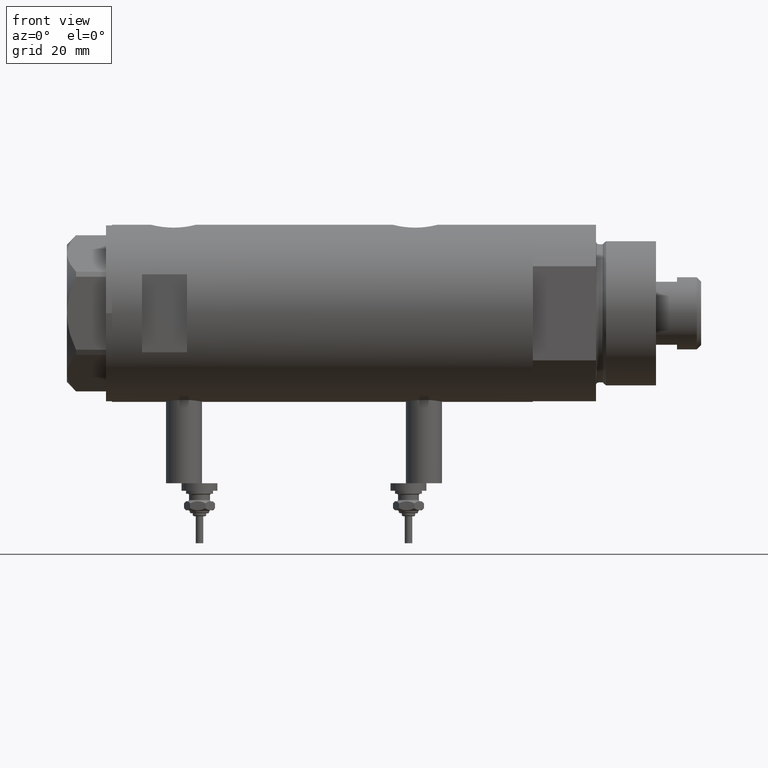
[diagram: clean part render]
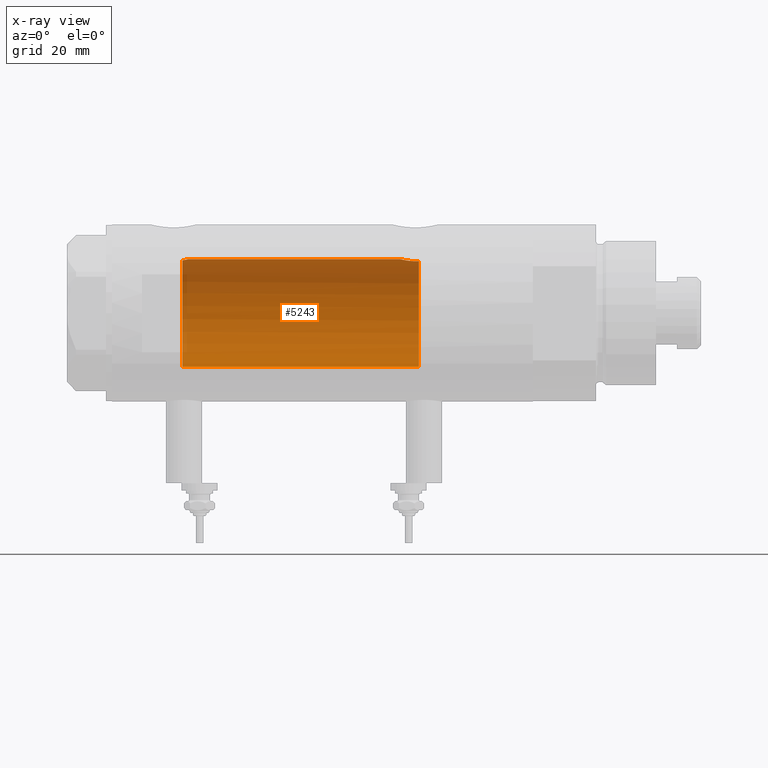
[diagram: x-ray — body ghosted, one internal face saturated and labeled with its STEP entity id]
A machine part, front view, then the same camera in x-ray: the body is ghosted and one INTERNAL B-rep face — a face not visible from any outside direction — is saturated and labeled: STEP entity #5243.
In plain terms, the highlighted cylindrical surface (partial cylindrical patch) has radius 18 mm, axis along (1, 0, -0).
Its self-contained STEP definition (entity closure, byte-faithful):
#23 = CARTESIAN_POINT ( 'NONE',  ( 0.000000000000000000, 0.000000000000000000, 46.59999999999999432 ) ) ;
#143 = VERTEX_POINT ( 'NONE', #2026 ) ;
#261 = CARTESIAN_POINT ( 'NONE',  ( 17.58783030962034388, 3.829911878881825160, 46.59999999999998721 ) ) ;
#329 = CARTESIAN_POINT ( 'NONE',  ( 17.83158514913445103, 2.461498934476296085, 45.39965995681277633 ) ) ;
#420 = CARTESIAN_POINT ( 'NONE',  ( 17.49030773641652914, 4.256160900234553957, -28.51469509681785652 ) ) ;
#527 = CARTESIAN_POINT ( 'NONE',  ( 17.37157951943346745, 4.714681855650494136, -32.09999999999999432 ) ) ;
#595 = AXIS2_PLACEMENT_3D ( 'NONE', #2265, #3985, #3167 ) ;
#606 = VERTEX_POINT ( 'NONE', #5298 ) ;
#624 = EDGE_CURVE ( 'NONE', #606, #143, #5754, .T. ) ;
#669 = AXIS2_PLACEMENT_3D ( 'NONE', #810, #4337, #2526 ) ;
#704 = CARTESIAN_POINT ( 'NONE',  ( 17.95540531162507136, 1.279032093992328756, 44.90250861430337892 ) ) ;
#792 = CARTESIAN_POINT ( 'NONE',  ( 17.43128843254318028, 4.489613141718952427, -29.01700003713170162 ) ) ;
#810 = CARTESIAN_POINT ( 'NONE',  ( 0.000000000000000000, 0.000000000000000000, -32.09999999999998721 ) ) ;
#887 = EDGE_LOOP ( 'NONE', ( #3698, #1569, #5894, #1204, #1902, #2461 ) ) ;
#959 = CARTESIAN_POINT ( 'NONE',  ( 17.35631194664785681, 4.771042759406570077, -29.89667763205954287 ) ) ;
#1070 = CARTESIAN_POINT ( 'NONE',  ( -18.00000000000000000, 0.000000000000000000, 46.59999999999999432 ) ) ;
#1136 = CARTESIAN_POINT ( 'NONE',  ( 17.68814035493779357, 3.348626323852638365, 46.05183600219630335 ) ) ;
#1155 = VERTEX_POINT ( 'NONE', #2778 ) ;
#1204 = ORIENTED_EDGE ( 'NONE', *, *, #5886, .T. ) ;
#1218 = CARTESIAN_POINT ( 'NONE',  ( 17.68656644271517209, 3.347025706529860312, -27.36453774950910045 ) ) ;
#1260 = CARTESIAN_POINT ( 'NONE',  ( 18.00000000000000000, 5.958021437579254357E-16, -26.03499999999998948 ) ) ;
#1284 = CARTESIAN_POINT ( 'NONE',  ( 17.41328271218089796, 4.558641711475907243, -29.19087254718660418 ) ) ;
#1404 = CARTESIAN_POINT ( 'NONE',  ( 17.58783030962034388, 3.829911878881825160, 46.59999999999998721 ) ) ;
#1569 = ORIENTED_EDGE ( 'NONE', *, *, #1582, .F. ) ;
#1580 = CARTESIAN_POINT ( 'NONE',  ( 17.63704841537101231, 3.603891093161669890, 46.31145343596539732 ) ) ;
#1582 = EDGE_CURVE ( 'NONE', #4367, #3429, #3288, .T. ) ;
#1650 = CARTESIAN_POINT ( 'NONE',  ( 17.99716691696285409, 0.3685254503903831469, -26.04545042928659981 ) ) ;
#1677 = CARTESIAN_POINT ( 'NONE',  ( 17.76085061188610581, 2.927954048074872251, -27.01043039029092441 ) ) ;
#1678 = CARTESIAN_POINT ( 'NONE',  ( 17.85293122918850273, 2.302201220737755794, 45.31031080804816469 ) ) ;
#1747 = CARTESIAN_POINT ( 'NONE',  ( 17.53642083926971651, 4.065376572064631766, -28.20260027543615777 ) ) ;
#1771 = CARTESIAN_POINT ( 'NONE',  ( 18.00000000000000000, 0.000000000000000000, 44.73499999999999233 ) ) ;
#1784 = LINE ( 'NONE', #4880, #3920 ) ;
#1902 = ORIENTED_EDGE ( 'NONE', *, *, #624, .T. ) ;
#1984 = B_SPLINE_CURVE_WITH_KNOTS ( 'NONE', 3,
 ( #1260, #4936, #1650, #2100, #3057, #2186, #5362, #3490, #4025, #5338, #1677, #3514, #1218, #4906, #5877, #1747, #420, #792, #1284, #2704, #959, #5482, #5903, #2789, #4555, #4620, #527 ),
 .UNSPECIFIED., .F., .F.,
 ( 4, 2, 2, 2, 2, 2, 2, 2, 2, 2, 1, 2, 2, 4 ),
 ( 0.01528157848519460724, 0.01583467956029641077, 0.01638778063539821778, 0.01749398278560182138, 0.01804708386070362491, 0.01860018493580542845, 0.01915328601090723198, 0.01970638708600903552, 0.02081258923621265300, 0.02136569031131445653, 0.02191879138641626354, 0.02247189246151807054, 0.02302499353661987755, 0.02413119568682350197 ),
 .UNSPECIFIED. ) ;
#2026 = CARTESIAN_POINT ( 'NONE',  ( 17.37157951943346745, 4.714681855650494136, -32.09999999999999432 ) ) ;
#2074 = CARTESIAN_POINT ( 'NONE',  ( 18.00000000000001066, 0.3728474842072352358, 44.73499999999999233 ) ) ;
#2100 = CARTESIAN_POINT ( 'NONE',  ( 17.98587882862718601, 0.7362002489460850452, -26.08746722239206406 ) ) ;
#2186 = CARTESIAN_POINT ( 'NONE',  ( 17.94405978035183935, 1.463580074031385569, -26.24553017623723861 ) ) ;
#2265 = CARTESIAN_POINT ( 'NONE',  ( 0.000000000000000000, 0.000000000000000000, 70.09999999999999432 ) ) ;
#2461 = ORIENTED_EDGE ( 'NONE', *, *, #3424, .F. ) ;
#2526 = DIRECTION ( 'NONE',  ( -1.000000000000000000, 0.000000000000000000, 0.000000000000000000 ) ) ;
#2687 = DIRECTION ( 'NONE',  ( -0.000000000000000000, -0.000000000000000000, -1.000000000000000000 ) ) ;
#2704 = CARTESIAN_POINT ( 'NONE',  ( 17.38237957915197285, 4.675094569549008483, -29.54138980228257338 ) ) ;
#2778 = CARTESIAN_POINT ( 'NONE',  ( 18.00000000000000000, 5.958021437579254357E-16, -26.03499999999998948 ) ) ;
#2789 = CARTESIAN_POINT ( 'NONE',  ( 17.32928165965088141, 4.867855194001449171, -30.81899018256649114 ) ) ;
#2972 = CARTESIAN_POINT ( 'NONE',  ( 17.89217382667230538, 1.974183297225218015, 45.14981302266163965 ) ) ;
#3057 = CARTESIAN_POINT ( 'NONE',  ( 17.97733715731490989, 0.9209699998971184742, -26.11935966604423243 ) ) ;
#3090 = DIRECTION ( 'NONE',  ( 0.000000000000000000, 0.000000000000000000, 1.000000000000000000 ) ) ;
#3167 = DIRECTION ( 'NONE',  ( -1.000000000000000000, 0.000000000000000000, 0.000000000000000000 ) ) ;
#3288 = B_SPLINE_CURVE_WITH_KNOTS ( 'NONE', 3,
 ( #261, #1580, #1136, #3903, #3491, #329, #1678, #2972, #3516, #4324, #704, #4816, #2074, #5738 ),
 .UNSPECIFIED., .F., .F.,
 ( 4, 2, 2, 2, 2, 2, 4 ),
 ( 0.02614985543880328500, 0.02725214354003946404, 0.02780328759065755356, 0.02835443164127564308, 0.02890557569189372913, 0.02945671974251181865, 0.03055900784374799770 ),
 .UNSPECIFIED. ) ;
#3332 = DIRECTION ( 'NONE',  ( -0.000000000000000000, -0.000000000000000000, -1.000000000000000000 ) ) ;
#3422 = CARTESIAN_POINT ( 'NONE',  ( -18.00000000000000000, 0.000000000000000000, 70.09999999999999432 ) ) ;
#3424 = EDGE_CURVE ( 'NONE', #1155, #143, #1984, .T. ) ;
#3429 = VERTEX_POINT ( 'NONE', #1771 ) ;
#3490 = CARTESIAN_POINT ( 'NONE',  ( 17.85236636886077832, 2.306694554785103435, -26.61264586133006560 ) ) ;
#3491 = CARTESIAN_POINT ( 'NONE',  ( 17.78617492856930227, 2.770629413254892537, 45.59682049650071178 ) ) ;
#3514 = CARTESIAN_POINT ( 'NONE',  ( 17.71174132276681590, 3.211689381115077513, -27.24121359250870000 ) ) ;
#3516 = CARTESIAN_POINT ( 'NONE',  ( 17.91007218376326193, 1.805463612197654166, 45.07866376881659676 ) ) ;
#3581 = DIRECTION ( 'NONE',  ( 1.000000000000000000, 0.000000000000000000, 0.000000000000000000 ) ) ;
#3698 = ORIENTED_EDGE ( 'NONE', *, *, #5541, .F. ) ;
#3795 = LINE ( 'NONE', #3422, #5387 ) ;
#3868 = VERTEX_POINT ( 'NONE', #1070 ) ;
#3903 = CARTESIAN_POINT ( 'NONE',  ( 17.76196254920472128, 2.921230608637938264, 45.70535341986154521 ) ) ;
#3920 = VECTOR ( 'NONE', #2687, 1000.000000000000000 ) ;
#3934 = CIRCLE ( 'NONE', #5481, 18.00000000000000000 ) ;
#3985 = DIRECTION ( 'NONE',  ( -0.000000000000000000, -0.000000000000000000, -1.000000000000000000 ) ) ;
#4025 = CARTESIAN_POINT ( 'NONE',  ( 17.83051055968251219, 2.469307448774137104, -26.70420614498791778 ) ) ;
#4047 = FACE_OUTER_BOUND ( 'NONE', #887, .T. ) ;
#4324 = CARTESIAN_POINT ( 'NONE',  ( 17.94167814235965608, 1.458276351914867375, 44.95504464479716233 ) ) ;
#4337 = DIRECTION ( 'NONE',  ( 0.000000000000000000, 0.000000000000000000, -1.000000000000000000 ) ) ;
#4367 = VERTEX_POINT ( 'NONE', #1404 ) ;
#4555 = CARTESIAN_POINT ( 'NONE',  ( 17.33262691996380767, 4.855935766715060886, -31.37488940890202116 ) ) ;
#4620 = CARTESIAN_POINT ( 'NONE',  ( 17.34671983132639284, 4.806279138776324622, -31.74012329268312271 ) ) ;
#4814 = EDGE_CURVE ( 'NONE', #4367, #3868, #3934, .T. ) ;
#4816 = CARTESIAN_POINT ( 'NONE',  ( 17.98843015915091570, 0.7391836159806497442, 44.77731130524778536 ) ) ;
#4880 = CARTESIAN_POINT ( 'NONE',  ( 18.00000000000000000, 2.204364238465235033E-15, 70.09999999999999432 ) ) ;
#4906 = CARTESIAN_POINT ( 'NONE',  ( 17.63589737371339083, 3.604488512479873119, -27.62742655266249514 ) ) ;
#4936 = CARTESIAN_POINT ( 'NONE',  ( 17.99999999999999645, 0.1844036484100888829, -26.03499999999998238 ) ) ;
#5243 = ADVANCED_FACE ( 'NONE', ( #4047 ), #5446, .F. ) ;
#5298 = CARTESIAN_POINT ( 'NONE',  ( -18.00000000000000000, 0.000000000000000000, -32.09999999999998721 ) ) ;
#5338 = CARTESIAN_POINT ( 'NONE',  ( 17.78478726694684298, 2.779555353823086161, -26.90297143050465323 ) ) ;
#5362 = CARTESIAN_POINT ( 'NONE',  ( 17.91189082287941403, 1.809824880389074186, -26.36912370284670004 ) ) ;
#5387 = VECTOR ( 'NONE', #3332, 1000.000000000000000 ) ;
#5446 = CYLINDRICAL_SURFACE ( 'NONE', #595, 18.00000000000000000 ) ;
#5481 = AXIS2_PLACEMENT_3D ( 'NONE', #23, #3090, #3581 ) ;
#5482 = CARTESIAN_POINT ( 'NONE',  ( 17.34085862114803689, 4.826483754267692383, -30.26145238513612057 ) ) ;
#5541 = EDGE_CURVE ( 'NONE', #3429, #1155, #1784, .T. ) ;
#5738 = CARTESIAN_POINT ( 'NONE',  ( 18.00000000000000000, 0.000000000000000000, 44.73499999999999233 ) ) ;
#5754 = CIRCLE ( 'NONE', #669, 18.00000000000000000 ) ;
#5877 = CARTESIAN_POINT ( 'NONE',  ( 17.61032289555864239, 3.726910670425180427, -27.76756985850230564 ) ) ;
#5886 = EDGE_CURVE ( 'NONE', #3868, #606, #3795, .T. ) ;
#5894 = ORIENTED_EDGE ( 'NONE', *, *, #4814, .T. ) ;
#5903 = CARTESIAN_POINT ( 'NONE',  ( 17.33118376015917761, 4.861110225087390546, -30.63112109378173642 ) ) ;